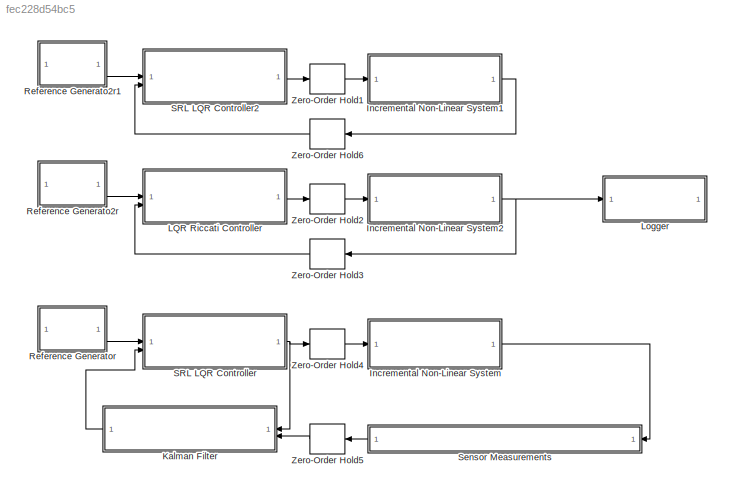
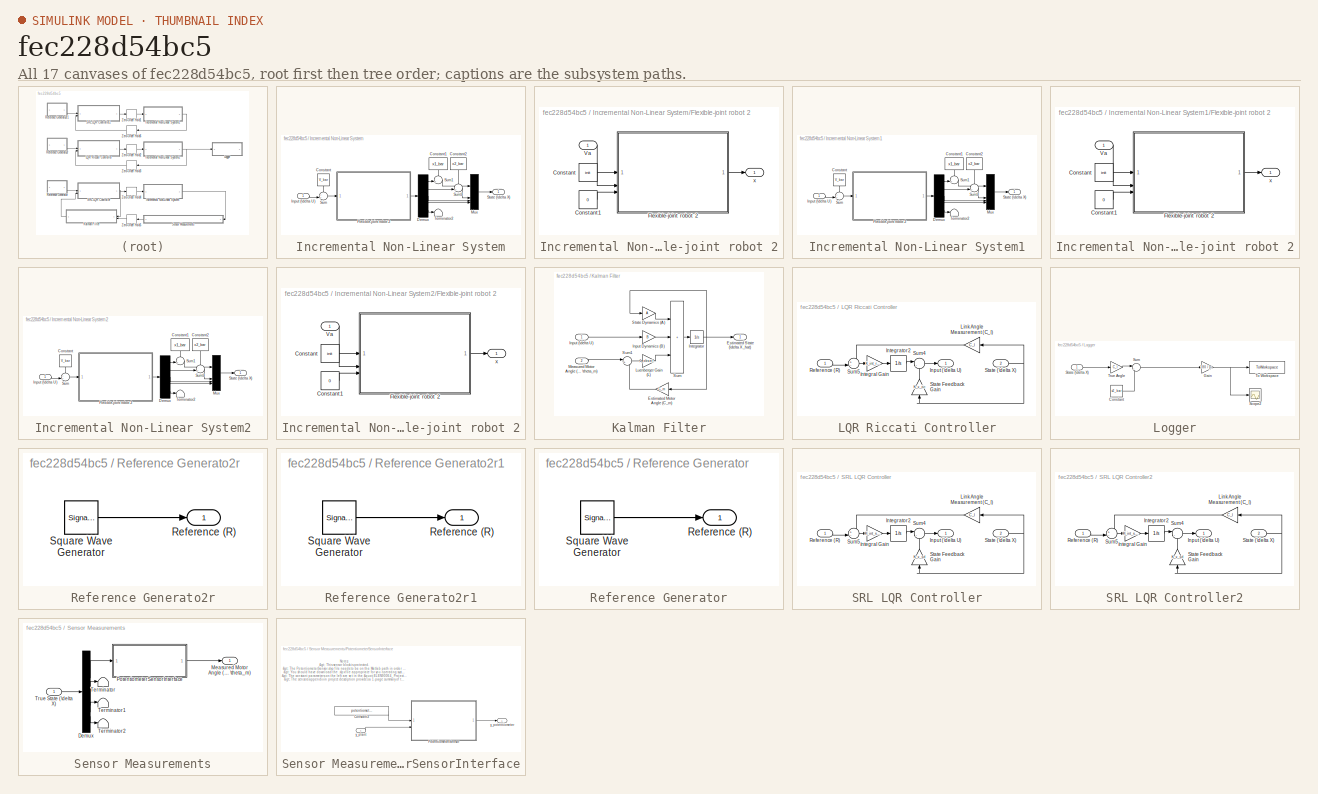
[diagram: thumbnail index - all 17 canvases of the model, root first then tree order]
MODEL slx_fec228d54bc5
KIND model
CONFIG AbsTol = auto
CONFIG EnableMultiTasking = off
CONFIG FixedStep = auto
CONFIG MaxStep = auto
CONFIG MinStep = auto
CONFIG RelTol = 1e-3
CONFIG SampleTimeConstraint = Unconstrained
CONFIG SolverName = VariableStepAuto
CONFIG StartTime = 0.0
CONFIG StopTime = 10.0
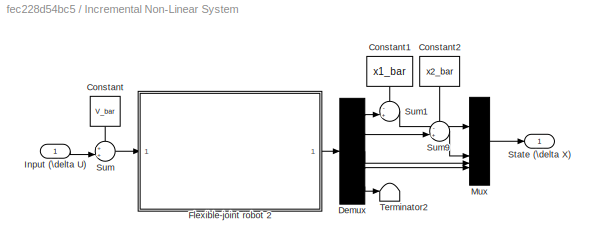
BLOCK [SubSystem] Incremental Non-Linear System
BLOCK [Constant] Incremental Non-Linear System/Constant
  NameLocation = left
  Value = V_bar
BLOCK [Constant] Incremental Non-Linear System/Constant1
  NameLocation = left
  Value = x1_bar
BLOCK [Constant] Incremental Non-Linear System/Constant2
  NameLocation = left
  Value = x2_bar
BLOCK [Demux] Incremental Non-Linear System/Demux
  Outputs = 5
BLOCK [SubSystem] Incremental Non-Linear System/Flexible-joint robot 2
BLOCK [Constant] Incremental Non-Linear System/Flexible-joint robot 2/Constant
  Value = init
BLOCK [Constant] Incremental Non-Linear System/Flexible-joint robot 2/Constant1
  Value = 0
BLOCK [ModelReference] Incremental Non-Linear System/Flexible-joint robot 2/Flexible-joint robot 2
  CopyOfModelProtected = on
  ModelNameDialog = Flexible_joint_robot_2
  ModelReferenceVersion = 1.65
BLOCK [Inport] Incremental Non-Linear System/Flexible-joint robot 2/Va
BLOCK [Outport] Incremental Non-Linear System/Flexible-joint robot 2/x
BLOCK [Inport] Incremental Non-Linear System/Input (\delta U)
BLOCK [Mux] Incremental Non-Linear System/Mux
  DisplayOption = bar
BLOCK [Outport] Incremental Non-Linear System/State (\delta X)
BLOCK [Sum] Incremental Non-Linear System/Sum
  Inputs = ++|
BLOCK [Sum] Incremental Non-Linear System/Sum1
  Inputs = -+|
BLOCK [Sum] Incremental Non-Linear System/Sum9
  Inputs = -+|
BLOCK [Terminator] Incremental Non-Linear System/Terminator2
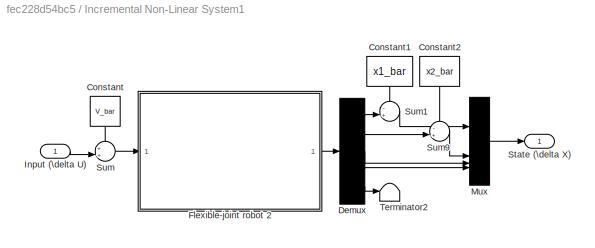
BLOCK [SubSystem] Incremental Non-Linear System1
BLOCK [Constant] Incremental Non-Linear System1/Constant
  NameLocation = left
  Value = V_bar
BLOCK [Constant] Incremental Non-Linear System1/Constant1
  NameLocation = left
  Value = x1_bar
BLOCK [Constant] Incremental Non-Linear System1/Constant2
  NameLocation = left
  Value = x2_bar
BLOCK [Demux] Incremental Non-Linear System1/Demux
  Outputs = 5
BLOCK [SubSystem] Incremental Non-Linear System1/Flexible-joint robot 2
BLOCK [Constant] Incremental Non-Linear System1/Flexible-joint robot 2/Constant
  Value = init
BLOCK [Constant] Incremental Non-Linear System1/Flexible-joint robot 2/Constant1
  Value = 0
BLOCK [ModelReference] Incremental Non-Linear System1/Flexible-joint robot 2/Flexible-joint robot 2
  CopyOfModelProtected = on
  ModelNameDialog = Flexible_joint_robot_2
  ModelReferenceVersion = 1.65
BLOCK [Inport] Incremental Non-Linear System1/Flexible-joint robot 2/Va
BLOCK [Outport] Incremental Non-Linear System1/Flexible-joint robot 2/x
BLOCK [Inport] Incremental Non-Linear System1/Input (\delta U)
BLOCK [Mux] Incremental Non-Linear System1/Mux
  DisplayOption = bar
BLOCK [Outport] Incremental Non-Linear System1/State (\delta X)
BLOCK [Sum] Incremental Non-Linear System1/Sum
  Inputs = ++|
BLOCK [Sum] Incremental Non-Linear System1/Sum1
  Inputs = -+|
BLOCK [Sum] Incremental Non-Linear System1/Sum9
  Inputs = -+|
BLOCK [Terminator] Incremental Non-Linear System1/Terminator2
BLOCK [SubSystem] Incremental Non-Linear System2
BLOCK [Constant] Incremental Non-Linear System2/Constant
  NameLocation = left
  Value = V_bar
BLOCK [Constant] Incremental Non-Linear System2/Constant1
  NameLocation = left
  Value = x1_bar
BLOCK [Constant] Incremental Non-Linear System2/Constant2
  NameLocation = left
  Value = x2_bar
BLOCK [Demux] Incremental Non-Linear System2/Demux
  Outputs = 5
BLOCK [SubSystem] Incremental Non-Linear System2/Flexible-joint robot 2
BLOCK [Constant] Incremental Non-Linear System2/Flexible-joint robot 2/Constant
  Value = init
BLOCK [Constant] Incremental Non-Linear System2/Flexible-joint robot 2/Constant1
  Value = 0
BLOCK [ModelReference] Incremental Non-Linear System2/Flexible-joint robot 2/Flexible-joint robot 2
  CopyOfModelProtected = on
  ModelNameDialog = Flexible_joint_robot_2
  ModelReferenceVersion = 1.65
BLOCK [Inport] Incremental Non-Linear System2/Flexible-joint robot 2/Va
BLOCK [Outport] Incremental Non-Linear System2/Flexible-joint robot 2/x
BLOCK [Inport] Incremental Non-Linear System2/Input (\delta U)
BLOCK [Mux] Incremental Non-Linear System2/Mux
  DisplayOption = bar
BLOCK [Outport] Incremental Non-Linear System2/State (\delta X)
BLOCK [Sum] Incremental Non-Linear System2/Sum
  Inputs = ++|
BLOCK [Sum] Incremental Non-Linear System2/Sum1
  Inputs = -+|
BLOCK [Sum] Incremental Non-Linear System2/Sum9
  Inputs = -+|
BLOCK [Terminator] Incremental Non-Linear System2/Terminator2
BLOCK [SubSystem] Kalman Filter
  NameLocation = top
BLOCK [Gain] Kalman Filter/Estimated Motor Angle (C_m)
  Gain = C_m
  Multiplication = Matrix(K*u)
  NameLocation = top
BLOCK [Outport] Kalman Filter/Estimated State (\delta X_hat)
BLOCK [Inport] Kalman Filter/Input (\delta U)
BLOCK [Gain] Kalman Filter/Input Dynamics (B)
  Gain = B
  Multiplication = Matrix(K*u)
BLOCK [Integrator] Kalman Filter/Integrator
BLOCK [Gain] Kalman Filter/Luenberger Gain (L)
  Gain = J_observer
  Multiplication = Matrix(K*u)
BLOCK [Inport] Kalman Filter/Measured Motor Angle (\delta \theta_m)
  Port = 2
BLOCK [Gain] Kalman Filter/State Dynamics (A)
  Gain = A
  Multiplication = Matrix(K*u)
BLOCK [Sum] Kalman Filter/Sum
  IconShape = rectangular
  Inputs = +++
BLOCK [Sum] Kalman Filter/Sum1
  Inputs = |+-
BLOCK [SubSystem] LQR Riccati Controller
BLOCK [Outport] LQR Riccati Controller/Input (\delta U)
BLOCK [Gain] LQR Riccati Controller/Integral Gain
  Gain = K_int_ric
BLOCK [Integrator] LQR Riccati Controller/Integrator2
BLOCK [Gain] LQR Riccati Controller/Link Angle Measurement (C_l)
  Gain = C_l
  Multiplication = Matrix(K*u)
  NameLocation = top
BLOCK [Inport] LQR Riccati Controller/Reference (R)
BLOCK [Inport] LQR Riccati Controller/State (\delta X)
  Port = 2
BLOCK [Gain] LQR Riccati Controller/State Feedback Gain
  Gain = K_x_ric
  Multiplication = Matrix(K*u)
  NameLocation = right
BLOCK [Sum] LQR Riccati Controller/Sum4
  Inputs = |--
BLOCK [Sum] LQR Riccati Controller/Sum5
  Inputs = +-|
BLOCK [SubSystem] Logger
BLOCK [Constant] Logger/Constant
  Value = x2_bar
BLOCK [Gain] Logger/Gain
  Gain = 180 / pi
BLOCK [Scope] Logger/Scope2
  Floating = off
  NumInputPorts = 1
  ScopeSpecificationString = Simulink.scopes.TimeScopeBlockCfg('CurrentConfiguration', extmgr.ConfigurationSet(extmgr.Configuration('Core','General UI',true),extmgr.Configuration('Core','Source UI',true),extmgr.Configuration('Sources','WiredSimulink',true,'DataLoggingVariableName','ScopeData5'),extmgr.Configuration('Visuals','Time Domain',true,'SerializedDisplays',{struct('MinYLimReal','11.17002','MaxYLimReal','48.82495','YLa...<+1699ch>
BLOCK [Inport] Logger/State (\delta X)
BLOCK [Sum] Logger/Sum
  Inputs = |++
BLOCK [ToWorkspace] Logger/To Workspace
  FixptAsFi = on
  MaxDataPoints = inf
  SampleTime = -1
  SaveFormat = Timeseries
  VariableName = link_angle
BLOCK [Gain] Logger/True Angle
  Gain = C_l
  Multiplication = Matrix(K*u)
BLOCK [SubSystem] Reference Generato2r
BLOCK [Outport] Reference Generato2r/Reference (R)
BLOCK [SignalGenerator] Reference Generato2r/Square Wave Generator
  Amplitude = wave_amplitude
  Frequency = 1 / wave_period
  WaveForm = square
BLOCK [SubSystem] Reference Generato2r1
BLOCK [Outport] Reference Generato2r1/Reference (R)
BLOCK [SignalGenerator] Reference Generato2r1/Square Wave Generator
  Amplitude = wave_amplitude
  Frequency = 1 / wave_period
  WaveForm = square
BLOCK [SubSystem] Reference Generator
BLOCK [Outport] Reference Generator/Reference (R)
BLOCK [SignalGenerator] Reference Generator/Square Wave Generator
  Amplitude = wave_amplitude
  Frequency = 1 / wave_period
  WaveForm = square
BLOCK [SubSystem] SRL LQR Controller
BLOCK [Outport] SRL LQR Controller/Input (\delta U)
BLOCK [Gain] SRL LQR Controller/Integral Gain
  Gain = K_int_srl
BLOCK [Integrator] SRL LQR Controller/Integrator2
BLOCK [Gain] SRL LQR Controller/Link Angle Measurement (C_l)
  Gain = C_l
  Multiplication = Matrix(K*u)
  NameLocation = top
BLOCK [Inport] SRL LQR Controller/Reference (R)
BLOCK [Inport] SRL LQR Controller/State (\delta X)
  Port = 2
BLOCK [Gain] SRL LQR Controller/State Feedback Gain
  Gain = K_x_srl
  Multiplication = Matrix(K*u)
  NameLocation = right
BLOCK [Sum] SRL LQR Controller/Sum4
  Inputs = |--
BLOCK [Sum] SRL LQR Controller/Sum5
  Inputs = +-|
BLOCK [SubSystem] SRL LQR Controller2
BLOCK [Outport] SRL LQR Controller2/Input (\delta U)
BLOCK [Gain] SRL LQR Controller2/Integral Gain
  Gain = K_int_srl
BLOCK [Integrator] SRL LQR Controller2/Integrator2
BLOCK [Gain] SRL LQR Controller2/Link Angle Measurement (C_l)
  Gain = C_l
  Multiplication = Matrix(K*u)
  NameLocation = top
BLOCK [Inport] SRL LQR Controller2/Reference (R)
BLOCK [Inport] SRL LQR Controller2/State (\delta X)
  Port = 2
BLOCK [Gain] SRL LQR Controller2/State Feedback Gain
  Gain = K_x_srl
  Multiplication = Matrix(K*u)
  NameLocation = right
BLOCK [Sum] SRL LQR Controller2/Sum4
  Inputs = |--
BLOCK [Sum] SRL LQR Controller2/Sum5
  Inputs = +-|
BLOCK [SubSystem] Sensor Measurements
  NameLocation = top
BLOCK [Demux] Sensor Measurements/Demux
BLOCK [Outport] Sensor Measurements/Measured Motor Angle (\delta \theta_m)
BLOCK [SubSystem] Sensor Measurements/PotentiometerSensorInterface
  TreatAsAtomicUnit = on
BLOCK [Constant] Sensor Measurements/PotentiometerSensorInterface/Constant3
  Value = potentiometer_linearity_percent
BLOCK [ModelReference] Sensor Measurements/PotentiometerSensorInterface/PotentiometerSensor
  CopyOfModelProtected = on
  ModelNameDialog = PotentiometerSensor.slxp
  ModelReferenceVersion = 1.21
BLOCK [Inport] Sensor Measurements/PotentiometerSensorInterface/y_plant
BLOCK [Outport] Sensor Measurements/PotentiometerSensorInterface/y_potentiometer
BLOCK [Terminator] Sensor Measurements/Terminator
BLOCK [Terminator] Sensor Measurements/Terminator1
BLOCK [Terminator] Sensor Measurements/Terminator2
BLOCK [Inport] Sensor Measurements/True State (\delta X)
BLOCK [ZeroOrderHold] Zero-Order Hold1
  SampleTime = min_sampling_time
BLOCK [ZeroOrderHold] Zero-Order Hold2
  SampleTime = min_sampling_time
BLOCK [ZeroOrderHold] Zero-Order Hold3
  NameLocation = top
  SampleTime = min_sampling_time
BLOCK [ZeroOrderHold] Zero-Order Hold4
  SampleTime = min_sampling_time
BLOCK [ZeroOrderHold] Zero-Order Hold5
  NameLocation = top
  SampleTime = min_sampling_time
BLOCK [ZeroOrderHold] Zero-Order Hold6
  NameLocation = top
  SampleTime = min_sampling_time
ANNOTATION Sensor Measurements/PotentiometerSensorInterface: Notes: > This sensor block is protected. > The PotentiometerSensor.slxp file needs to be on the Matlab path in order to simulate this sensor. > You should have download the .slpx file appropriate for you operating system {Windows, Mac, Linux}. > The constant parameters on the left are set in the " ELEN90064_Project_Parameters.m " script. > The sensors appendix in project description provides a 1-p...<+188ch>
LINE Incremental Non-Linear System/Constant1:1 -> Incremental Non-Linear System/Sum1:1
LINE Incremental Non-Linear System/Constant2:1 -> Incremental Non-Linear System/Sum9:1
LINE Incremental Non-Linear System/Constant:1 -> Incremental Non-Linear System/Sum:1
LINE Incremental Non-Linear System/Demux:1 -> Incremental Non-Linear System/Sum1:2
LINE Incremental Non-Linear System/Demux:2 -> Incremental Non-Linear System/Sum9:2
LINE Incremental Non-Linear System/Demux:3 -> Incremental Non-Linear System/Mux:3
LINE Incremental Non-Linear System/Demux:4 -> Incremental Non-Linear System/Mux:4
LINE Incremental Non-Linear System/Demux:5 -> Incremental Non-Linear System/Terminator2:1
LINE Incremental Non-Linear System/Flexible-joint robot 2/Constant1:1 -> Incremental Non-Linear System/Flexible-joint robot 2/Flexible-joint robot 2:3
LINE Incremental Non-Linear System/Flexible-joint robot 2/Constant:1 -> Incremental Non-Linear System/Flexible-joint robot 2/Flexible-joint robot 2:2
LINE Incremental Non-Linear System/Flexible-joint robot 2/Flexible-joint robot 2:1 -> Incremental Non-Linear System/Flexible-joint robot 2/x:1
LINE Incremental Non-Linear System/Flexible-joint robot 2/Va:1 -> Incremental Non-Linear System/Flexible-joint robot 2/Flexible-joint robot 2:1
LINE Incremental Non-Linear System/Flexible-joint robot 2:1 -> Incremental Non-Linear System/Demux:1
LINE Incremental Non-Linear System/Input (\delta U):1 -> Incremental Non-Linear System/Sum:2
LINE Incremental Non-Linear System/Mux:1 -> Incremental Non-Linear System/State (\delta X):1
LINE Incremental Non-Linear System/Sum1:1 -> Incremental Non-Linear System/Mux:1
LINE Incremental Non-Linear System/Sum9:1 -> Incremental Non-Linear System/Mux:2
LINE Incremental Non-Linear System/Sum:1 -> Incremental Non-Linear System/Flexible-joint robot 2:1
LINE Incremental Non-Linear System1/Constant1:1 -> Incremental Non-Linear System1/Sum1:1
LINE Incremental Non-Linear System1/Constant2:1 -> Incremental Non-Linear System1/Sum9:1
LINE Incremental Non-Linear System1/Constant:1 -> Incremental Non-Linear System1/Sum:1
LINE Incremental Non-Linear System1/Demux:1 -> Incremental Non-Linear System1/Sum1:2
LINE Incremental Non-Linear System1/Demux:2 -> Incremental Non-Linear System1/Sum9:2
LINE Incremental Non-Linear System1/Demux:3 -> Incremental Non-Linear System1/Mux:3
LINE Incremental Non-Linear System1/Demux:4 -> Incremental Non-Linear System1/Mux:4
LINE Incremental Non-Linear System1/Demux:5 -> Incremental Non-Linear System1/Terminator2:1
LINE Incremental Non-Linear System1/Flexible-joint robot 2/Constant1:1 -> Incremental Non-Linear System1/Flexible-joint robot 2/Flexible-joint robot 2:3
LINE Incremental Non-Linear System1/Flexible-joint robot 2/Constant:1 -> Incremental Non-Linear System1/Flexible-joint robot 2/Flexible-joint robot 2:2
LINE Incremental Non-Linear System1/Flexible-joint robot 2/Flexible-joint robot 2:1 -> Incremental Non-Linear System1/Flexible-joint robot 2/x:1
LINE Incremental Non-Linear System1/Flexible-joint robot 2/Va:1 -> Incremental Non-Linear System1/Flexible-joint robot 2/Flexible-joint robot 2:1
LINE Incremental Non-Linear System1/Flexible-joint robot 2:1 -> Incremental Non-Linear System1/Demux:1
LINE Incremental Non-Linear System1/Input (\delta U):1 -> Incremental Non-Linear System1/Sum:2
LINE Incremental Non-Linear System1/Mux:1 -> Incremental Non-Linear System1/State (\delta X):1
LINE Incremental Non-Linear System1/Sum1:1 -> Incremental Non-Linear System1/Mux:1
LINE Incremental Non-Linear System1/Sum9:1 -> Incremental Non-Linear System1/Mux:2
LINE Incremental Non-Linear System1/Sum:1 -> Incremental Non-Linear System1/Flexible-joint robot 2:1
LINE Incremental Non-Linear System1:1 -> Zero-Order Hold6:1
LINE Incremental Non-Linear System2/Constant1:1 -> Incremental Non-Linear System2/Sum1:1
LINE Incremental Non-Linear System2/Constant2:1 -> Incremental Non-Linear System2/Sum9:1
LINE Incremental Non-Linear System2/Constant:1 -> Incremental Non-Linear System2/Sum:1
LINE Incremental Non-Linear System2/Demux:1 -> Incremental Non-Linear System2/Sum1:2
LINE Incremental Non-Linear System2/Demux:2 -> Incremental Non-Linear System2/Sum9:2
LINE Incremental Non-Linear System2/Demux:3 -> Incremental Non-Linear System2/Mux:3
LINE Incremental Non-Linear System2/Demux:4 -> Incremental Non-Linear System2/Mux:4
LINE Incremental Non-Linear System2/Demux:5 -> Incremental Non-Linear System2/Terminator2:1
LINE Incremental Non-Linear System2/Flexible-joint robot 2/Constant1:1 -> Incremental Non-Linear System2/Flexible-joint robot 2/Flexible-joint robot 2:3
LINE Incremental Non-Linear System2/Flexible-joint robot 2/Constant:1 -> Incremental Non-Linear System2/Flexible-joint robot 2/Flexible-joint robot 2:2
LINE Incremental Non-Linear System2/Flexible-joint robot 2/Flexible-joint robot 2:1 -> Incremental Non-Linear System2/Flexible-joint robot 2/x:1
LINE Incremental Non-Linear System2/Flexible-joint robot 2/Va:1 -> Incremental Non-Linear System2/Flexible-joint robot 2/Flexible-joint robot 2:1
LINE Incremental Non-Linear System2/Flexible-joint robot 2:1 -> Incremental Non-Linear System2/Demux:1
LINE Incremental Non-Linear System2/Input (\delta U):1 -> Incremental Non-Linear System2/Sum:2
LINE Incremental Non-Linear System2/Mux:1 -> Incremental Non-Linear System2/State (\delta X):1
LINE Incremental Non-Linear System2/Sum1:1 -> Incremental Non-Linear System2/Mux:1
LINE Incremental Non-Linear System2/Sum9:1 -> Incremental Non-Linear System2/Mux:2
LINE Incremental Non-Linear System2/Sum:1 -> Incremental Non-Linear System2/Flexible-joint robot 2:1
NET Incremental Non-Linear System2:1 -> Logger:1, Zero-Order Hold3:1
LINE Incremental Non-Linear System:1 -> Sensor Measurements:1
LINE Kalman Filter/Estimated Motor Angle (C_m):1 -> Kalman Filter/Sum1:2
LINE Kalman Filter/Input (\delta U):1 -> Kalman Filter/Input Dynamics (B):1
LINE Kalman Filter/Input Dynamics (B):1 -> Kalman Filter/Sum:2
NET Kalman Filter/Integrator:1 -> Kalman Filter/Estimated Motor Angle (C_m):1, Kalman Filter/Estimated State (\delta X_hat):1, Kalman Filter/State Dynamics (A):1
LINE Kalman Filter/Luenberger Gain (L):1 -> Kalman Filter/Sum:3
LINE Kalman Filter/Measured Motor Angle (\delta \theta_m):1 -> Kalman Filter/Sum1:1
LINE Kalman Filter/State Dynamics (A):1 -> Kalman Filter/Sum:1
LINE Kalman Filter/Sum1:1 -> Kalman Filter/Luenberger Gain (L):1
LINE Kalman Filter/Sum:1 -> Kalman Filter/Integrator:1
LINE Kalman Filter:1 -> SRL LQR Controller:2
LINE LQR Riccati Controller/Integral Gain:1 -> LQR Riccati Controller/Integrator2:1
LINE LQR Riccati Controller/Integrator2:1 -> LQR Riccati Controller/Sum4:1
LINE LQR Riccati Controller/Link Angle Measurement (C_l):1 -> LQR Riccati Controller/Sum5:1
LINE LQR Riccati Controller/Reference (R):1 -> LQR Riccati Controller/Sum5:2
NET LQR Riccati Controller/State (\delta X):1 -> LQR Riccati Controller/Link Angle Measurement (C_l):1, LQR Riccati Controller/State Feedback Gain:1
LINE LQR Riccati Controller/State Feedback Gain:1 -> LQR Riccati Controller/Sum4:2
LINE LQR Riccati Controller/Sum4:1 -> LQR Riccati Controller/Input (\delta U):1
LINE LQR Riccati Controller/Sum5:1 -> LQR Riccati Controller/Integral Gain:1
LINE LQR Riccati Controller:1 -> Zero-Order Hold2:1
LINE Logger/Constant:1 -> Logger/Sum:2
NET Logger/Gain:1 -> Logger/Scope2:1, Logger/To Workspace:1
LINE Logger/State (\delta X):1 -> Logger/True Angle:1
LINE Logger/Sum:1 -> Logger/Gain:1
LINE Logger/True Angle:1 -> Logger/Sum:1
LINE Reference Generato2r/Square Wave Generator:1 -> Reference Generato2r/Reference (R):1
LINE Reference Generato2r1/Square Wave Generator:1 -> Reference Generato2r1/Reference (R):1
LINE Reference Generato2r1:1 -> SRL LQR Controller2:1
LINE Reference Generato2r:1 -> LQR Riccati Controller:1
LINE Reference Generator/Square Wave Generator:1 -> Reference Generator/Reference (R):1
LINE Reference Generator:1 -> SRL LQR Controller:1
LINE SRL LQR Controller/Integral Gain:1 -> SRL LQR Controller/Integrator2:1
LINE SRL LQR Controller/Integrator2:1 -> SRL LQR Controller/Sum4:1
LINE SRL LQR Controller/Link Angle Measurement (C_l):1 -> SRL LQR Controller/Sum5:1
LINE SRL LQR Controller/Reference (R):1 -> SRL LQR Controller/Sum5:2
NET SRL LQR Controller/State (\delta X):1 -> SRL LQR Controller/Link Angle Measurement (C_l):1, SRL LQR Controller/State Feedback Gain:1
LINE SRL LQR Controller/State Feedback Gain:1 -> SRL LQR Controller/Sum4:2
LINE SRL LQR Controller/Sum4:1 -> SRL LQR Controller/Input (\delta U):1
LINE SRL LQR Controller/Sum5:1 -> SRL LQR Controller/Integral Gain:1
LINE SRL LQR Controller2/Integral Gain:1 -> SRL LQR Controller2/Integrator2:1
LINE SRL LQR Controller2/Integrator2:1 -> SRL LQR Controller2/Sum4:1
LINE SRL LQR Controller2/Link Angle Measurement (C_l):1 -> SRL LQR Controller2/Sum5:1
LINE SRL LQR Controller2/Reference (R):1 -> SRL LQR Controller2/Sum5:2
NET SRL LQR Controller2/State (\delta X):1 -> SRL LQR Controller2/Link Angle Measurement (C_l):1, SRL LQR Controller2/State Feedback Gain:1
LINE SRL LQR Controller2/State Feedback Gain:1 -> SRL LQR Controller2/Sum4:2
LINE SRL LQR Controller2/Sum4:1 -> SRL LQR Controller2/Input (\delta U):1
LINE SRL LQR Controller2/Sum5:1 -> SRL LQR Controller2/Integral Gain:1
LINE SRL LQR Controller2:1 -> Zero-Order Hold1:1
NET SRL LQR Controller:1 -> Kalman Filter:1, Zero-Order Hold4:1
LINE Sensor Measurements/Demux:1 -> Sensor Measurements/PotentiometerSensorInterface:1
LINE Sensor Measurements/Demux:2 -> Sensor Measurements/Terminator:1
LINE Sensor Measurements/Demux:3 -> Sensor Measurements/Terminator1:1
LINE Sensor Measurements/Demux:4 -> Sensor Measurements/Terminator2:1
LINE Sensor Measurements/PotentiometerSensorInterface/Constant3:1 -> Sensor Measurements/PotentiometerSensorInterface/PotentiometerSensor:1
LINE Sensor Measurements/PotentiometerSensorInterface/PotentiometerSensor:1 -> Sensor Measurements/PotentiometerSensorInterface/y_potentiometer:1
LINE Sensor Measurements/PotentiometerSensorInterface/y_plant:1 -> Sensor Measurements/PotentiometerSensorInterface/PotentiometerSensor:2
LINE Sensor Measurements/PotentiometerSensorInterface:1 -> Sensor Measurements/Measured Motor Angle (\delta \theta_m):1
LINE Sensor Measurements/True State (\delta X):1 -> Sensor Measurements/Demux:1
LINE Sensor Measurements:1 -> Zero-Order Hold5:1
LINE Zero-Order Hold1:1 -> Incremental Non-Linear System1:1
LINE Zero-Order Hold2:1 -> Incremental Non-Linear System2:1
LINE Zero-Order Hold3:1 -> LQR Riccati Controller:2
LINE Zero-Order Hold4:1 -> Incremental Non-Linear System:1
LINE Zero-Order Hold5:1 -> Kalman Filter:2
LINE Zero-Order Hold6:1 -> SRL LQR Controller2:2
note: NET lines group one-source signal fan-out (src -> all destinations, sorted); 1:1 wires keep LINE
